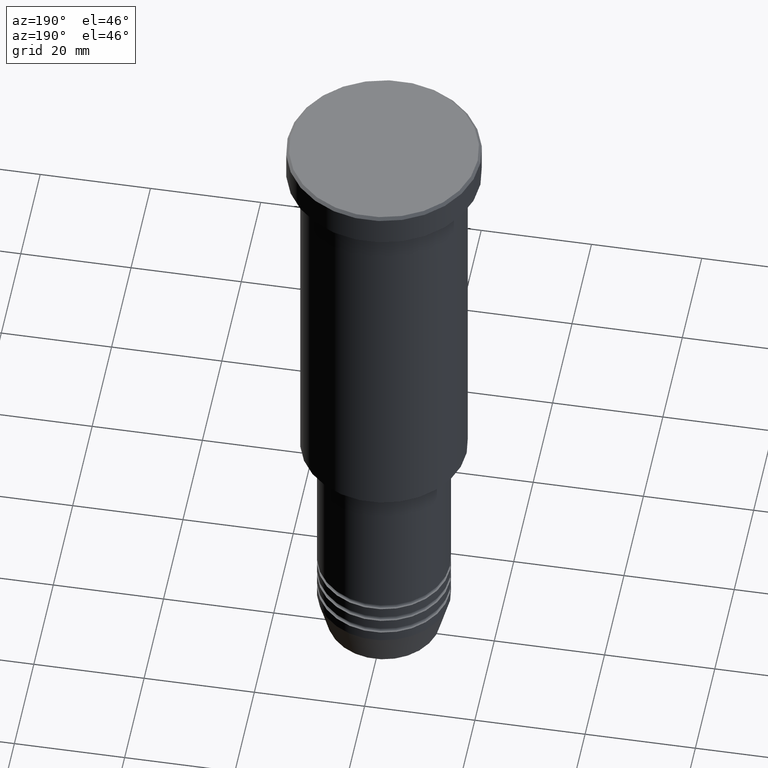
[diagram: clean part render]
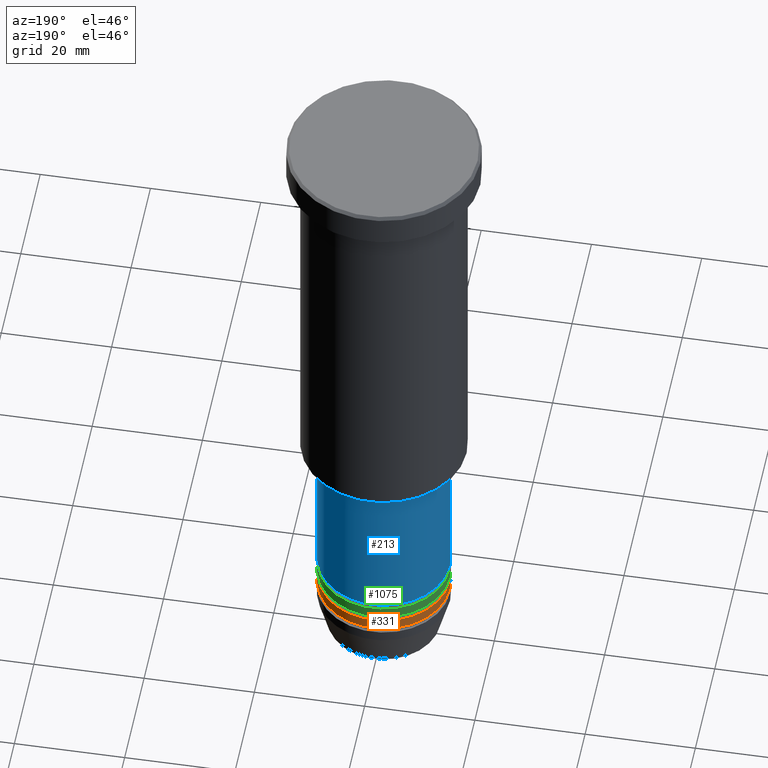
[diagram: same view with three faces highlighted in distinct colors, each labeled with its STEP entity id]
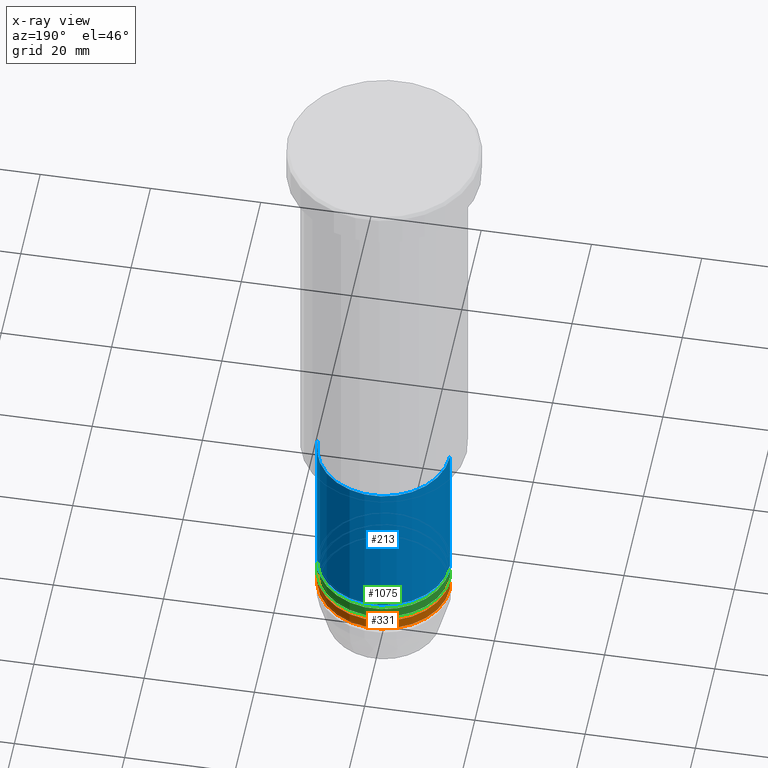
[diagram: x-ray of the same camera — body ghosted, the three highlighted faces saturated]
A machine part, auxiliary view with three faces highlighted in distinct colors.
The next image is the same camera in x-ray (body ghosted, the three faces saturated) — at least one of them is partly hidden behind the body in this view.
Their STEP definitions:

[orange] entity #331 — the highlighted cylindrical surface (partial cylindrical patch) has radius 12 mm, axis along (-0, -0, 1).
#19 = DIRECTION ( 'NONE',  ( -0.000000000000000000, -0.000000000000000000, 1.000000000000000000 ) ) ;
#54 = AXIS2_PLACEMENT_3D ( 'NONE', #664, #563, #59 ) ;
#59 = DIRECTION ( 'NONE',  ( 1.000000000000000000, 0.000000000000000000, 0.000000000000000000 ) ) ;
#77 = EDGE_CURVE ( 'NONE', #863, #922, #1007, .T. ) ;
#78 = CARTESIAN_POINT ( 'NONE',  ( -12.00000000000000000, 1.469576158976823947E-15, -108.9999999999999716 ) ) ;
#121 = CYLINDRICAL_SURFACE ( 'NONE', #468, 12.00000000000000000 ) ;
#143 = CIRCLE ( 'NONE', #477, 12.00000000000000000 ) ;
#152 = ORIENTED_EDGE ( 'NONE', *, *, #537, .F. ) ;
#204 = VECTOR ( 'NONE', #1146, 1000.000000000000000 ) ;
#276 = EDGE_CURVE ( 'NONE', #863, #454, #1122, .T. ) ;
#310 = DIRECTION ( 'NONE',  ( -0.000000000000000000, -0.000000000000000000, 1.000000000000000000 ) ) ;
#323 = VECTOR ( 'NONE', #941, 1000.000000000000000 ) ;
#331 = ADVANCED_FACE ( 'NONE', ( #573 ), #121, .T. ) ;
#379 = VERTEX_POINT ( 'NONE', #78 ) ;
#392 = DIRECTION ( 'NONE',  ( 1.000000000000000000, 0.000000000000000000, 0.000000000000000000 ) ) ;
#404 = CARTESIAN_POINT ( 'NONE',  ( 0.000000000000000000, 0.000000000000000000, -108.9999999999999716 ) ) ;
#413 = LINE ( 'NONE', #780, #204 ) ;
#454 = VERTEX_POINT ( 'NONE', #651 ) ;
#468 = AXIS2_PLACEMENT_3D ( 'NONE', #648, #19, #842 ) ;
#473 = CARTESIAN_POINT ( 'NONE',  ( 12.00000000000000000, 0.000000000000000000, 0.000000000000000000 ) ) ;
#477 = AXIS2_PLACEMENT_3D ( 'NONE', #404, #310, #392 ) ;
#537 = EDGE_CURVE ( 'NONE', #454, #379, #143, .T. ) ;
#563 = DIRECTION ( 'NONE',  ( -0.000000000000000000, -0.000000000000000000, 1.000000000000000000 ) ) ;
#573 = FACE_OUTER_BOUND ( 'NONE', #767, .T. ) ;
#593 = CARTESIAN_POINT ( 'NONE',  ( 12.00000000000000000, 0.000000000000000000, -110.9999999999999574 ) ) ;
#648 = CARTESIAN_POINT ( 'NONE',  ( 0.000000000000000000, 0.000000000000000000, 0.000000000000000000 ) ) ;
#651 = CARTESIAN_POINT ( 'NONE',  ( 12.00000000000000000, 0.000000000000000000, -108.9999999999999716 ) ) ;
#664 = CARTESIAN_POINT ( 'NONE',  ( 0.000000000000000000, 0.000000000000000000, -110.9999999999999574 ) ) ;
#670 = EDGE_CURVE ( 'NONE', #922, #379, #413, .T. ) ;
#767 = EDGE_LOOP ( 'NONE', ( #984, #834, #152, #1171 ) ) ;
#780 = CARTESIAN_POINT ( 'NONE',  ( -12.00000000000000000, 1.469576158976823947E-15, 0.000000000000000000 ) ) ;
#834 = ORIENTED_EDGE ( 'NONE', *, *, #670, .T. ) ;
#842 = DIRECTION ( 'NONE',  ( 1.000000000000000000, 0.000000000000000000, 0.000000000000000000 ) ) ;
#863 = VERTEX_POINT ( 'NONE', #593 ) ;
#922 = VERTEX_POINT ( 'NONE', #963 ) ;
#941 = DIRECTION ( 'NONE',  ( -0.000000000000000000, -0.000000000000000000, 1.000000000000000000 ) ) ;
#963 = CARTESIAN_POINT ( 'NONE',  ( -12.00000000000000000, 1.469576158976823947E-15, -110.9999999999999574 ) ) ;
#984 = ORIENTED_EDGE ( 'NONE', *, *, #77, .T. ) ;
#1007 = CIRCLE ( 'NONE', #54, 12.00000000000000000 ) ;
#1122 = LINE ( 'NONE', #473, #323 ) ;
#1146 = DIRECTION ( 'NONE',  ( -0.000000000000000000, -0.000000000000000000, 1.000000000000000000 ) ) ;
#1171 = ORIENTED_EDGE ( 'NONE', *, *, #276, .F. ) ;

[blue] entity #213 — the highlighted cylindrical surface (partial cylindrical patch) has radius 12 mm, axis along (-0, -0, 1).
#26 = CIRCLE ( 'NONE', #344, 12.00000000000000000 ) ;
#92 = DIRECTION ( 'NONE',  ( 1.000000000000000000, 0.000000000000000000, 0.000000000000000000 ) ) ;
#106 = EDGE_CURVE ( 'NONE', #396, #372, #829, .T. ) ;
#147 = LINE ( 'NONE', #292, #258 ) ;
#213 = ADVANCED_FACE ( 'NONE', ( #467 ), #669, .T. ) ;
#215 = CARTESIAN_POINT ( 'NONE',  ( 12.00000000000000000, 0.000000000000000000, -104.9999999999999574 ) ) ;
#231 = CARTESIAN_POINT ( 'NONE',  ( 0.000000000000000000, 0.000000000000000000, -76.99999999999998579 ) ) ;
#232 = EDGE_LOOP ( 'NONE', ( #541, #445, #639, #735 ) ) ;
#237 = DIRECTION ( 'NONE',  ( -0.000000000000000000, -0.000000000000000000, 1.000000000000000000 ) ) ;
#258 = VECTOR ( 'NONE', #438, 1000.000000000000000 ) ;
#292 = CARTESIAN_POINT ( 'NONE',  ( 12.00000000000000000, 0.000000000000000000, 0.000000000000000000 ) ) ;
#296 = CARTESIAN_POINT ( 'NONE',  ( 0.000000000000000000, 0.000000000000000000, 0.000000000000000000 ) ) ;
#321 = DIRECTION ( 'NONE',  ( -0.000000000000000000, -0.000000000000000000, 1.000000000000000000 ) ) ;
#344 = AXIS2_PLACEMENT_3D ( 'NONE', #553, #743, #92 ) ;
#372 = VERTEX_POINT ( 'NONE', #704 ) ;
#396 = VERTEX_POINT ( 'NONE', #719 ) ;
#421 = EDGE_CURVE ( 'NONE', #557, #844, #26, .T. ) ;
#438 = DIRECTION ( 'NONE',  ( -0.000000000000000000, -0.000000000000000000, 1.000000000000000000 ) ) ;
#445 = ORIENTED_EDGE ( 'NONE', *, *, #928, .T. ) ;
#467 = FACE_OUTER_BOUND ( 'NONE', #232, .T. ) ;
#541 = ORIENTED_EDGE ( 'NONE', *, *, #421, .T. ) ;
#553 = CARTESIAN_POINT ( 'NONE',  ( 0.000000000000000000, 0.000000000000000000, -104.9999999999999574 ) ) ;
#557 = VERTEX_POINT ( 'NONE', #215 ) ;
#639 = ORIENTED_EDGE ( 'NONE', *, *, #106, .F. ) ;
#669 = CYLINDRICAL_SURFACE ( 'NONE', #892, 12.00000000000000000 ) ;
#681 = CARTESIAN_POINT ( 'NONE',  ( -12.00000000000000000, 1.469576158976823947E-15, 0.000000000000000000 ) ) ;
#704 = CARTESIAN_POINT ( 'NONE',  ( -12.00000000000000000, 1.469576158976823947E-15, -76.99999999999998579 ) ) ;
#707 = DIRECTION ( 'NONE',  ( 1.000000000000000000, 0.000000000000000000, 0.000000000000000000 ) ) ;
#719 = CARTESIAN_POINT ( 'NONE',  ( 12.00000000000000000, 0.000000000000000000, -76.99999999999998579 ) ) ;
#735 = ORIENTED_EDGE ( 'NONE', *, *, #814, .F. ) ;
#743 = DIRECTION ( 'NONE',  ( -0.000000000000000000, -0.000000000000000000, 1.000000000000000000 ) ) ;
#751 = VECTOR ( 'NONE', #321, 1000.000000000000000 ) ;
#778 = CARTESIAN_POINT ( 'NONE',  ( -12.00000000000000000, 1.469576158976823947E-15, -104.9999999999999574 ) ) ;
#814 = EDGE_CURVE ( 'NONE', #557, #396, #147, .T. ) ;
#829 = CIRCLE ( 'NONE', #987, 12.00000000000000000 ) ;
#844 = VERTEX_POINT ( 'NONE', #778 ) ;
#892 = AXIS2_PLACEMENT_3D ( 'NONE', #296, #1017, #913 ) ;
#913 = DIRECTION ( 'NONE',  ( 1.000000000000000000, 0.000000000000000000, 0.000000000000000000 ) ) ;
#928 = EDGE_CURVE ( 'NONE', #844, #372, #1043, .T. ) ;
#987 = AXIS2_PLACEMENT_3D ( 'NONE', #231, #237, #707 ) ;
#1017 = DIRECTION ( 'NONE',  ( -0.000000000000000000, -0.000000000000000000, 1.000000000000000000 ) ) ;
#1043 = LINE ( 'NONE', #681, #751 ) ;

[green] entity #1075 — the highlighted cylindrical surface (partial cylindrical patch) has radius 12 mm, axis along (-0, -0, 1).
#96 = DIRECTION ( 'NONE',  ( 1.000000000000000000, 0.000000000000000000, 0.000000000000000000 ) ) ;
#115 = CARTESIAN_POINT ( 'NONE',  ( -12.00000000000000000, 1.469576158976823947E-15, -107.9999999999999574 ) ) ;
#137 = LINE ( 'NONE', #418, #769 ) ;
#161 = ORIENTED_EDGE ( 'NONE', *, *, #761, .F. ) ;
#167 = DIRECTION ( 'NONE',  ( -0.000000000000000000, -0.000000000000000000, 1.000000000000000000 ) ) ;
#175 = CARTESIAN_POINT ( 'NONE',  ( 0.000000000000000000, 0.000000000000000000, -105.9999999999999716 ) ) ;
#239 = CIRCLE ( 'NONE', #313, 12.00000000000000000 ) ;
#272 = VERTEX_POINT ( 'NONE', #115 ) ;
#273 = LINE ( 'NONE', #588, #499 ) ;
#313 = AXIS2_PLACEMENT_3D ( 'NONE', #518, #335, #583 ) ;
#314 = ORIENTED_EDGE ( 'NONE', *, *, #637, .T. ) ;
#335 = DIRECTION ( 'NONE',  ( -0.000000000000000000, -0.000000000000000000, 1.000000000000000000 ) ) ;
#357 = CARTESIAN_POINT ( 'NONE',  ( 0.000000000000000000, 0.000000000000000000, 0.000000000000000000 ) ) ;
#367 = VERTEX_POINT ( 'NONE', #1153 ) ;
#376 = DIRECTION ( 'NONE',  ( 1.000000000000000000, 0.000000000000000000, 0.000000000000000000 ) ) ;
#418 = CARTESIAN_POINT ( 'NONE',  ( -12.00000000000000000, 1.469576158976823947E-15, 0.000000000000000000 ) ) ;
#435 = VERTEX_POINT ( 'NONE', #876 ) ;
#497 = DIRECTION ( 'NONE',  ( -0.000000000000000000, -0.000000000000000000, 1.000000000000000000 ) ) ;
#499 = VECTOR ( 'NONE', #497, 1000.000000000000000 ) ;
#515 = DIRECTION ( 'NONE',  ( -0.000000000000000000, -0.000000000000000000, 1.000000000000000000 ) ) ;
#518 = CARTESIAN_POINT ( 'NONE',  ( 0.000000000000000000, 0.000000000000000000, -107.9999999999999574 ) ) ;
#545 = FACE_OUTER_BOUND ( 'NONE', #918, .T. ) ;
#583 = DIRECTION ( 'NONE',  ( 1.000000000000000000, 0.000000000000000000, 0.000000000000000000 ) ) ;
#588 = CARTESIAN_POINT ( 'NONE',  ( 12.00000000000000000, 0.000000000000000000, 0.000000000000000000 ) ) ;
#606 = EDGE_CURVE ( 'NONE', #367, #902, #777, .T. ) ;
#615 = CYLINDRICAL_SURFACE ( 'NONE', #822, 12.00000000000000000 ) ;
#637 = EDGE_CURVE ( 'NONE', #272, #902, #137, .T. ) ;
#761 = EDGE_CURVE ( 'NONE', #435, #367, #273, .T. ) ;
#769 = VECTOR ( 'NONE', #515, 1000.000000000000000 ) ;
#777 = CIRCLE ( 'NONE', #921, 12.00000000000000000 ) ;
#822 = AXIS2_PLACEMENT_3D ( 'NONE', #357, #167, #96 ) ;
#828 = ORIENTED_EDGE ( 'NONE', *, *, #606, .F. ) ;
#876 = CARTESIAN_POINT ( 'NONE',  ( 12.00000000000000000, 0.000000000000000000, -107.9999999999999574 ) ) ;
#902 = VERTEX_POINT ( 'NONE', #1144 ) ;
#909 = DIRECTION ( 'NONE',  ( -0.000000000000000000, -0.000000000000000000, 1.000000000000000000 ) ) ;
#918 = EDGE_LOOP ( 'NONE', ( #1110, #314, #828, #161 ) ) ;
#921 = AXIS2_PLACEMENT_3D ( 'NONE', #175, #909, #376 ) ;
#982 = EDGE_CURVE ( 'NONE', #435, #272, #239, .T. ) ;
#1075 = ADVANCED_FACE ( 'NONE', ( #545 ), #615, .T. ) ;
#1110 = ORIENTED_EDGE ( 'NONE', *, *, #982, .T. ) ;
#1144 = CARTESIAN_POINT ( 'NONE',  ( -12.00000000000000000, 1.469576158976823947E-15, -105.9999999999999716 ) ) ;
#1153 = CARTESIAN_POINT ( 'NONE',  ( 12.00000000000000000, 0.000000000000000000, -105.9999999999999716 ) ) ;